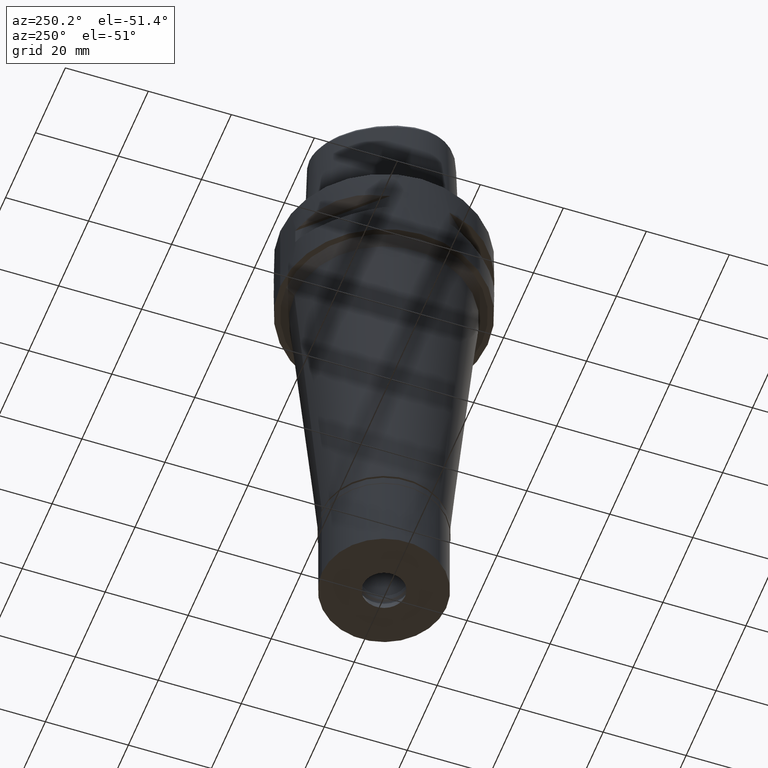
[diagram: clean part render]
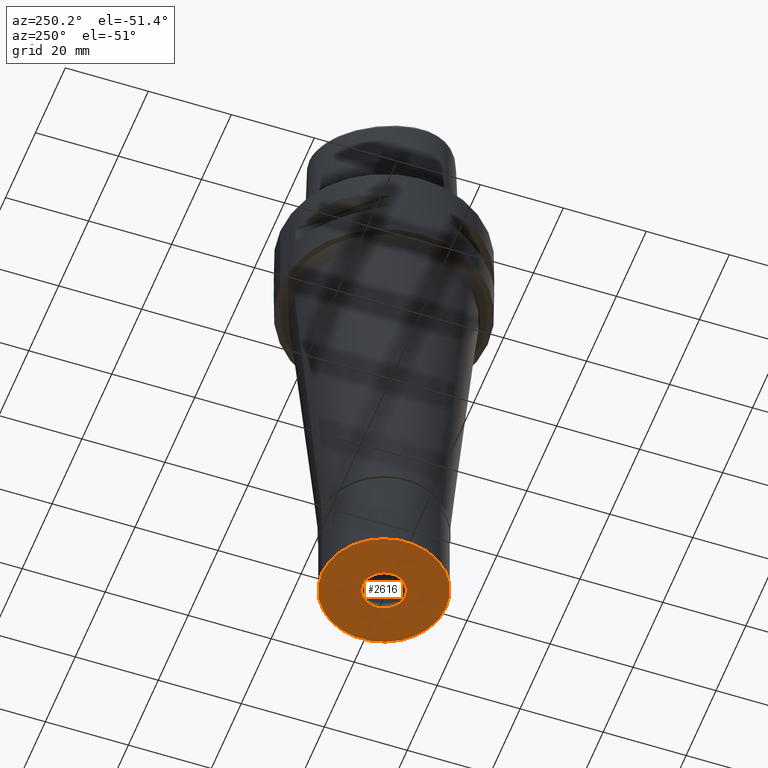
[diagram: same view with one face highlighted and labeled with its STEP entity id]
A machine part, auxiliary view. The second image highlights one B-rep face of the part: STEP entity #2616.
In plain terms, the highlighted planar face has unit normal (0, 0, -1).
Its self-contained STEP definition (entity closure, byte-faithful):
#71 = DIRECTION ( 'NONE',  ( 0.0000000000000000000, -1.000000000000000000, 0.0000000000000000000 ) ) ;
#115 = EDGE_LOOP ( 'NONE', ( #1541, #998 ) ) ;
#219 = EDGE_LOOP ( 'NONE', ( #1761, #3343 ) ) ;
#387 = DIRECTION ( 'NONE',  ( 0.0000000000000000000, 0.0000000000000000000, -1.000000000000000000 ) ) ;
#603 = AXIS2_PLACEMENT_3D ( 'NONE', #1883, #3402, #3784 ) ;
#701 = CARTESIAN_POINT ( 'NONE',  ( 0.0000000000000000000, 0.0000000000000000000, -22.00000000000000000 ) ) ;
#998 = ORIENTED_EDGE ( 'NONE', *, *, #1495, .F. ) ;
#1495 = EDGE_CURVE ( 'NONE', #1805, #4325, #4437, .T. ) ;
#1511 = FACE_OUTER_BOUND ( 'NONE', #115, .T. ) ;
#1541 = ORIENTED_EDGE ( 'NONE', *, *, #2636, .F. ) ;
#1597 = EDGE_CURVE ( 'NONE', #4051, #2141, #2808, .T. ) ;
#1642 = AXIS2_PLACEMENT_3D ( 'NONE', #3818, #387, #3471 ) ;
#1761 = ORIENTED_EDGE ( 'NONE', *, *, #3739, .F. ) ;
#1805 = VERTEX_POINT ( 'NONE', #2491 ) ;
#1883 = CARTESIAN_POINT ( 'NONE',  ( 0.0000000000000000000, 0.0000000000000000000, -22.00000000000000000 ) ) ;
#1911 = FACE_BOUND ( 'NONE', #219, .T. ) ;
#2141 = VERTEX_POINT ( 'NONE', #2237 ) ;
#2237 = CARTESIAN_POINT ( 'NONE',  ( 0.0000000000000000000, 5.100000000001000622, -22.00000000000000000 ) ) ;
#2270 = CARTESIAN_POINT ( 'NONE',  ( 0.0000000000000000000, -5.100000000001000622, -22.00000000000000000 ) ) ;
#2491 = CARTESIAN_POINT ( 'NONE',  ( 0.0000000000000000000, -15.00000000000000000, -22.00000000000000000 ) ) ;
#2616 = ADVANCED_FACE ( 'NONE', ( #1511, #1911 ), #4182, .T. ) ;
#2636 = EDGE_CURVE ( 'NONE', #4325, #1805, #3000, .T. ) ;
#2779 = CARTESIAN_POINT ( 'NONE',  ( 0.0000000000000000000, 0.0000000000000000000, -22.00000000000000000 ) ) ;
#2808 = CIRCLE ( 'NONE', #2902, 5.100000000001000622 ) ;
#2902 = AXIS2_PLACEMENT_3D ( 'NONE', #701, #3866, #71 ) ;
#2970 = DIRECTION ( 'NONE',  ( 0.0000000000000000000, 0.0000000000000000000, 1.000000000000000000 ) ) ;
#3000 = CIRCLE ( 'NONE', #3076, 15.00000000000000000 ) ;
#3076 = AXIS2_PLACEMENT_3D ( 'NONE', #2779, #4708, #4684 ) ;
#3343 = ORIENTED_EDGE ( 'NONE', *, *, #1597, .F. ) ;
#3402 = DIRECTION ( 'NONE',  ( 0.0000000000000000000, 0.0000000000000000000, -1.000000000000000000 ) ) ;
#3471 = DIRECTION ( 'NONE',  ( 0.0000000000000000000, -1.000000000000000000, 0.0000000000000000000 ) ) ;
#3622 = AXIS2_PLACEMENT_3D ( 'NONE', #4896, #2970, #4482 ) ;
#3636 = CIRCLE ( 'NONE', #603, 5.100000000001000622 ) ;
#3739 = EDGE_CURVE ( 'NONE', #2141, #4051, #3636, .T. ) ;
#3784 = DIRECTION ( 'NONE',  ( 0.0000000000000000000, 1.000000000000000000, 0.0000000000000000000 ) ) ;
#3818 = CARTESIAN_POINT ( 'NONE',  ( 0.0000000000000000000, 0.0000000000000000000, -22.00000000000000000 ) ) ;
#3866 = DIRECTION ( 'NONE',  ( 0.0000000000000000000, 0.0000000000000000000, -1.000000000000000000 ) ) ;
#4051 = VERTEX_POINT ( 'NONE', #2270 ) ;
#4182 = PLANE ( 'NONE',  #1642 ) ;
#4325 = VERTEX_POINT ( 'NONE', #4709 ) ;
#4437 = CIRCLE ( 'NONE', #3622, 15.00000000000000000 ) ;
#4482 = DIRECTION ( 'NONE',  ( 0.0000000000000000000, -1.000000000000000000, 0.0000000000000000000 ) ) ;
#4684 = DIRECTION ( 'NONE',  ( 0.0000000000000000000, 1.000000000000000000, 0.0000000000000000000 ) ) ;
#4708 = DIRECTION ( 'NONE',  ( 0.0000000000000000000, 0.0000000000000000000, 1.000000000000000000 ) ) ;
#4709 = CARTESIAN_POINT ( 'NONE',  ( 0.0000000000000000000, 15.00000000000000000, -22.00000000000000000 ) ) ;
#4896 = CARTESIAN_POINT ( 'NONE',  ( 0.0000000000000000000, 0.0000000000000000000, -22.00000000000000000 ) ) ;